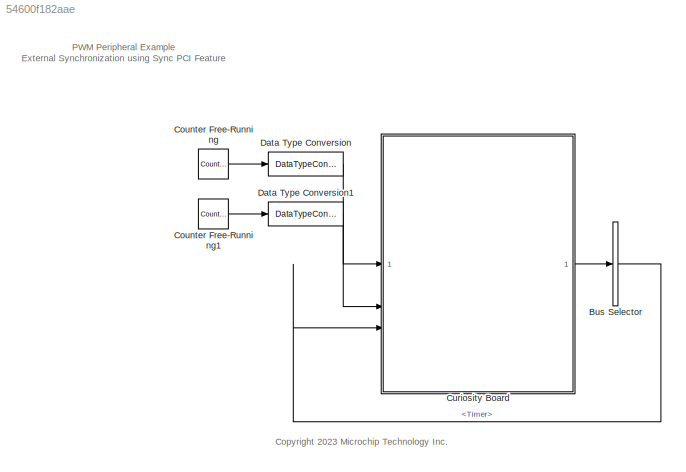
MODEL slx_54600f182aae
KIND model
CONFIG AbsTol = auto
CONFIG EnableMultiTasking = on
CONFIG FixedStep = 50e-6
CONFIG MaxStep = auto
CONFIG MinStep = auto
CONFIG RelTol = 1e-3
CONFIG SampleTimeConstraint = Unconstrained
CONFIG SolverName = FixedStepDiscrete
CONFIG StartTime = 0.0
CONFIG StopTime = 10.0
BLOCK [BusSelector] Bus Selector
  OutputSignals = Timer
BLOCK [Reference] Counter Free-Running  REF=simulink/Sources/Counter
Free-Running
  SourceBlock = simulink/Sources/Counter\nFree-Running
  SourceType = Counter Free-Running
BLOCK [Reference] Counter Free-Running1  REF=simulink/Sources/Counter
Free-Running
  SourceBlock = simulink/Sources/Counter\nFree-Running
  SourceType = Counter Free-Running
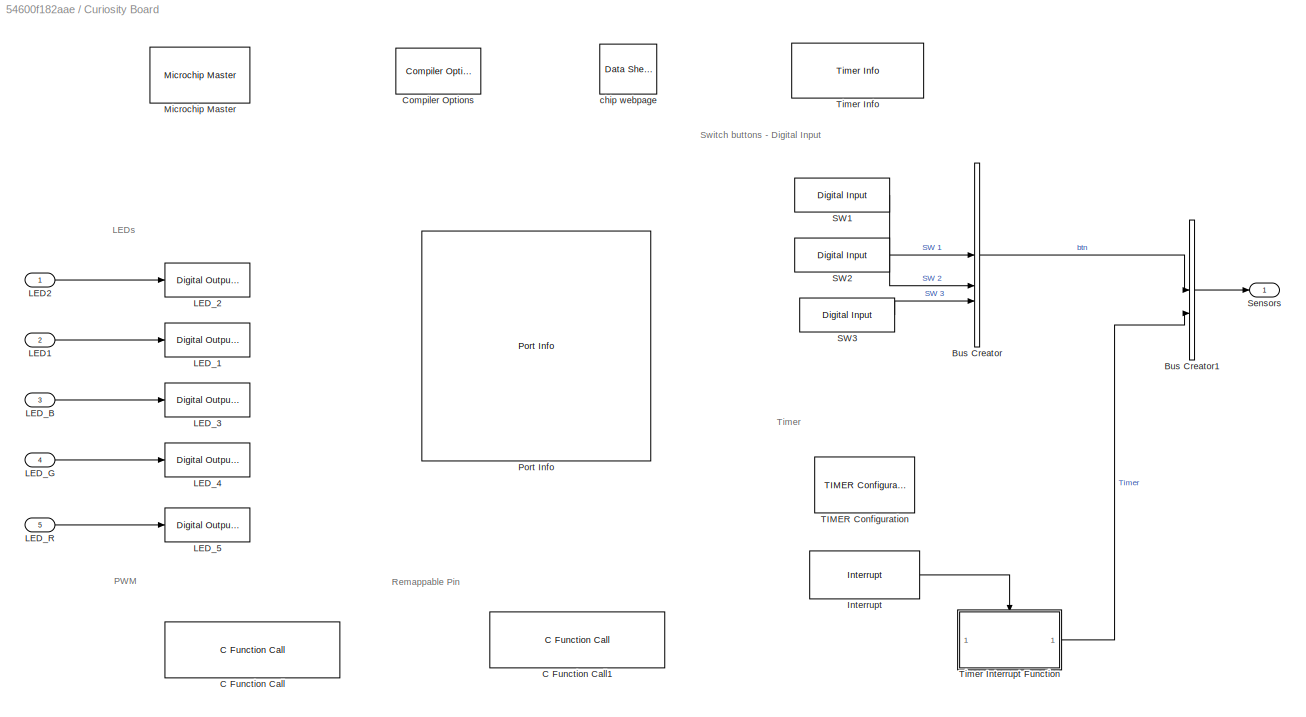
BLOCK [SubSystem] Curiosity Board
BLOCK [BusCreator] Curiosity Board/Bus Creator
  DisplayOption = bar
  InheritFromInputs = on
  Inputs = 3
BLOCK [BusCreator] Curiosity Board/Bus Creator1
  DisplayOption = bar
  InheritFromInputs = on
  Inputs = 2
BLOCK [Reference] Curiosity Board/C Function Call  REF=MCHP_Blockset/User Functions/C Function Call
  SourceBlock = MCHP_Blockset/User Functions/C Function Call
  SourceProductName = MPLAB Device Blocks for Simulink
  SourceType = C Function Call
  UserDataPersistent = on
BLOCK [Reference] Curiosity Board/C Function Call1  REF=MCHP_Blockset/User Functions/C Function Call
  SourceBlock = MCHP_Blockset/User Functions/C Function Call
  SourceProductName = MPLAB Device Blocks for Simulink
  SourceType = C Function Call
  UserDataPersistent = on
BLOCK [Reference] Curiosity Board/Compiler Options  REF=MCHP_Blockset/System Configuration/Compiler Options
  Priority = 1
  SourceBlock = MCHP_Blockset/System Configuration/Compiler Options
  SourceProductName = MPLAB Device Blocks for Simulink
BLOCK [Reference] Curiosity Board/Interrupt  REF=MCHP_Blockset/System Functions/Interrupt
  SourceBlock = MCHP_Blockset/System Functions/Interrupt
  SourceProductName = MPLAB Device Blocks for Simulink
  SourceType = Interruption (Call Simulink Subfunction)
BLOCK [Inport] Curiosity Board/LED1
  Port = 2
BLOCK [Inport] Curiosity Board/LED2
BLOCK [Reference] Curiosity Board/LED_1  REF=MCHP_Blockset/Digital IO/Digital Output
Write
  SourceBlock = MCHP_Blockset/Digital IO/Digital Output\nWrite
  SourceProductName = MPLAB Device Blocks for Simulink
  SourceType = Output driver for Digital Output Pins
BLOCK [Reference] Curiosity Board/LED_2  REF=MCHP_Blockset/Digital IO/Digital Output
Write
  SourceBlock = MCHP_Blockset/Digital IO/Digital Output\nWrite
  SourceProductName = MPLAB Device Blocks for Simulink
  SourceType = Output driver for Digital Output Pins
BLOCK [Reference] Curiosity Board/LED_3  REF=MCHP_Blockset/Digital IO/Digital Output
Write
  SourceBlock = MCHP_Blockset/Digital IO/Digital Output\nWrite
  SourceProductName = MPLAB Device Blocks for Simulink
  SourceType = Output driver for Digital Output Pins
BLOCK [Reference] Curiosity Board/LED_4  REF=MCHP_Blockset/Digital IO/Digital Output
Write
  SourceBlock = MCHP_Blockset/Digital IO/Digital Output\nWrite
  SourceProductName = MPLAB Device Blocks for Simulink
  SourceType = Output driver for Digital Output Pins
BLOCK [Reference] Curiosity Board/LED_5  REF=MCHP_Blockset/Digital IO/Digital Output
Write
  SourceBlock = MCHP_Blockset/Digital IO/Digital Output\nWrite
  SourceProductName = MPLAB Device Blocks for Simulink
  SourceType = Output driver for Digital Output Pins
BLOCK [Inport] Curiosity Board/LED_B
  Port = 3
BLOCK [Inport] Curiosity Board/LED_G
  Port = 4
BLOCK [Inport] Curiosity Board/LED_R
  Port = 5
BLOCK [Reference] Curiosity Board/Microchip Master  REF=MCHP_Blockset/System Configuration/Microchip Master
  Priority = 1
  SourceBlock = MCHP_Blockset/System Configuration/Microchip Master
  SourceProductName = MPLAB Device Blocks for Simulink
BLOCK [Reference] Curiosity Board/Port Info  REF=MCHP_Blockset/System Info/Port Info
  SourceBlock = MCHP_Blockset/System Info/Port Info
  SourceProductName = MPLAB Device Blocks for Simulink
BLOCK [Reference] Curiosity Board/SW1  REF=MCHP_Blockset/Digital IO/Digital Input
  SourceBlock = MCHP_Blockset/Digital IO/Digital Input
  SourceProductName = MPLAB Device Blocks for Simulink
  SourceType = Input driver for Digital Input Pins
BLOCK [Reference] Curiosity Board/SW2  REF=MCHP_Blockset/Digital IO/Digital Input
  SourceBlock = MCHP_Blockset/Digital IO/Digital Input
  SourceProductName = MPLAB Device Blocks for Simulink
  SourceType = Input driver for Digital Input Pins
BLOCK [Reference] Curiosity Board/SW3  REF=MCHP_Blockset/Digital IO/Digital Input
  SourceBlock = MCHP_Blockset/Digital IO/Digital Input
  SourceProductName = MPLAB Device Blocks for Simulink
  SourceType = Input driver for Digital Input Pins
BLOCK [Outport] Curiosity Board/Sensors
BLOCK [Reference] Curiosity Board/TIMER Configuration  REF=MCHP_Blockset/Timers/TIMER Configuration
  SourceBlock = MCHP_Blockset/Timers/TIMER Configuration
  SourceProductName = MPLAB Device Blocks for Simulink
  SourceType = Timer Configuration
BLOCK [Reference] Curiosity Board/Timer Info  REF=MCHP_Blockset/System Info/Timer Info
  SourceBlock = MCHP_Blockset/System Info/Timer Info
  SourceProductName = MPLAB Device Blocks for Simulink
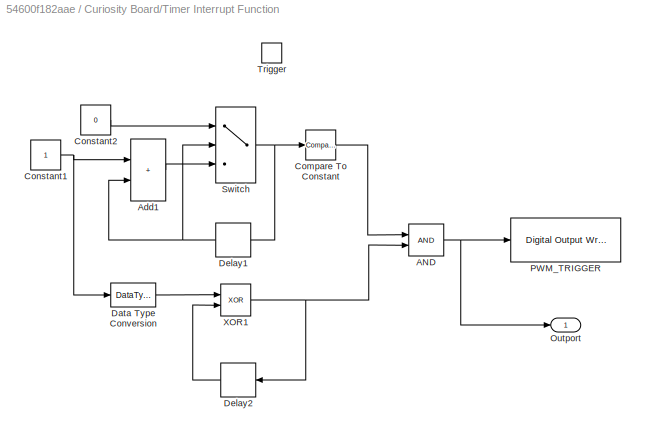
BLOCK [SubSystem] Curiosity Board/Timer Interrupt Function
BLOCK [Logic] Curiosity Board/Timer Interrupt Function/AND
  AllPortsSameDT = off
  IconShape = distinctive
  OutDataTypeStr = boolean
BLOCK [Sum] Curiosity Board/Timer Interrupt Function/Add1
  IconShape = rectangular
  SaturateOnIntegerOverflow = on
BLOCK [Reference] Curiosity Board/Timer Interrupt Function/Compare To Constant  REF=simulink/Logic and Bit
Operations/Compare
To Constant
  SourceBlock = simulink/Logic and Bit\nOperations/Compare\nTo Constant
  SourceType = Compare To Constant
BLOCK [Constant] Curiosity Board/Timer Interrupt Function/Constant1
  OutDataTypeStr = uint16
  SampleTime = -1
BLOCK [Constant] Curiosity Board/Timer Interrupt Function/Constant2
  OutDataTypeStr = uint16
  SampleTime = -1
  Value = 0
BLOCK [DataTypeConversion] Curiosity Board/Timer Interrupt Function/Data Type Conversion
  OutDataTypeStr = boolean
  RndMeth = Floor
  SaturateOnIntegerOverflow = off
BLOCK [Delay] Curiosity Board/Timer Interrupt Function/Delay1
  DelayLength = 1
  InputPortMap = u0
  NameLocation = top
BLOCK [Delay] Curiosity Board/Timer Interrupt Function/Delay2
  DelayLength = 1
  InputPortMap = u0
  NameLocation = top
BLOCK [Outport] Curiosity Board/Timer Interrupt Function/Outport
BLOCK [Reference] Curiosity Board/Timer Interrupt Function/PWM_TRIGGER  REF=MCHP_Blockset/Digital IO/Digital Output
Write
  SourceBlock = MCHP_Blockset/Digital IO/Digital Output\nWrite
  SourceProductName = MPLAB Device Blocks for Simulink
  SourceType = Output driver for Digital Output Pins
BLOCK [Switch] Curiosity Board/Timer Interrupt Function/Switch
  InputSameDT = off
  SaturateOnIntegerOverflow = off
  Threshold = 50
BLOCK [TriggerPort] Curiosity Board/Timer Interrupt Function/Trigger
  PortDimensions = 1
  StatesWhenEnabling = held
  TriggerType = function-call
  VariantControl = (inherit)
BLOCK [Logic] Curiosity Board/Timer Interrupt Function/XOR1
  AllPortsSameDT = off
  IconShape = distinctive
  Operator = XOR
  OutDataTypeStr = boolean
BLOCK [Reference] Curiosity Board/chip webpage  REF=MCHP_Blockset/System Info/Data Sheet
  AttributesFormatString = %<cpy_MCHP_Id>
  SourceBlock = MCHP_Blockset/System Info/Data Sheet
  SourceProductName = MPLAB Device Blocks for Simulink
BLOCK [DataTypeConversion] Data Type Conversion
  OutDataTypeStr = boolean
  RndMeth = Floor
  SaturateOnIntegerOverflow = off
BLOCK [DataTypeConversion] Data Type Conversion1
  OutDataTypeStr = boolean
  RndMeth = Floor
  SaturateOnIntegerOverflow = off
ANNOTATION (root): <copyright redacted>
ANNOTATION (root): PWM Peripheral Example External Synchronization using Sync PCI Feature
ANNOTATION Curiosity Board: LEDs
ANNOTATION Curiosity Board: PWM
ANNOTATION Curiosity Board: Remappable Pin
ANNOTATION Curiosity Board: Switch buttons - Digital Input
ANNOTATION Curiosity Board: Timer
LINE Bus Selector:1 -> Curiosity Board:3
LINE Counter Free-Running1:1 -> Data Type Conversion1:1
LINE Counter Free-Running:1 -> Data Type Conversion:1
LINE Curiosity Board/Bus Creator1:1 -> Curiosity Board/Sensors:1
LINE Curiosity Board/Bus Creator:1 -> Curiosity Board/Bus Creator1:1
LINE Curiosity Board/Interrupt:1 -> Curiosity Board/Timer Interrupt Function:trigger
LINE Curiosity Board/LED1:1 -> Curiosity Board/LED_1:1
LINE Curiosity Board/LED2:1 -> Curiosity Board/LED_2:1
LINE Curiosity Board/LED_B:1 -> Curiosity Board/LED_3:1
LINE Curiosity Board/LED_G:1 -> Curiosity Board/LED_4:1
LINE Curiosity Board/LED_R:1 -> Curiosity Board/LED_5:1
LINE Curiosity Board/SW1:1 -> Curiosity Board/Bus Creator:1
LINE Curiosity Board/SW2:1 -> Curiosity Board/Bus Creator:2
LINE Curiosity Board/SW3:1 -> Curiosity Board/Bus Creator:3
NET Curiosity Board/Timer Interrupt Function/AND:1 -> Curiosity Board/Timer Interrupt Function/Outport:1, Curiosity Board/Timer Interrupt Function/PWM_TRIGGER:1
LINE Curiosity Board/Timer Interrupt Function/Add1:1 -> Curiosity Board/Timer Interrupt Function/Switch:3
LINE Curiosity Board/Timer Interrupt Function/Compare To Constant:1 -> Curiosity Board/Timer Interrupt Function/AND:1
NET Curiosity Board/Timer Interrupt Function/Constant1:1 -> Curiosity Board/Timer Interrupt Function/Add1:1, Curiosity Board/Timer Interrupt Function/Data Type Conversion:1
LINE Curiosity Board/Timer Interrupt Function/Constant2:1 -> Curiosity Board/Timer Interrupt Function/Switch:1
LINE Curiosity Board/Timer Interrupt Function/Data Type Conversion:1 -> Curiosity Board/Timer Interrupt Function/XOR1:1
NET Curiosity Board/Timer Interrupt Function/Delay1:1 -> Curiosity Board/Timer Interrupt Function/Add1:2, Curiosity Board/Timer Interrupt Function/Switch:2
LINE Curiosity Board/Timer Interrupt Function/Delay2:1 -> Curiosity Board/Timer Interrupt Function/XOR1:2
NET Curiosity Board/Timer Interrupt Function/Switch:1 -> Curiosity Board/Timer Interrupt Function/Compare To Constant:1, Curiosity Board/Timer Interrupt Function/Delay1:1
NET Curiosity Board/Timer Interrupt Function/XOR1:1 -> Curiosity Board/Timer Interrupt Function/AND:2, Curiosity Board/Timer Interrupt Function/Delay2:1
LINE Curiosity Board/Timer Interrupt Function:1 -> Curiosity Board/Bus Creator1:2
LINE Curiosity Board:1 -> Bus Selector:1
LINE Data Type Conversion1:1 -> Curiosity Board:2
LINE Data Type Conversion:1 -> Curiosity Board:1
note: NET lines group one-source signal fan-out (src -> all destinations, sorted); 1:1 wires keep LINE
